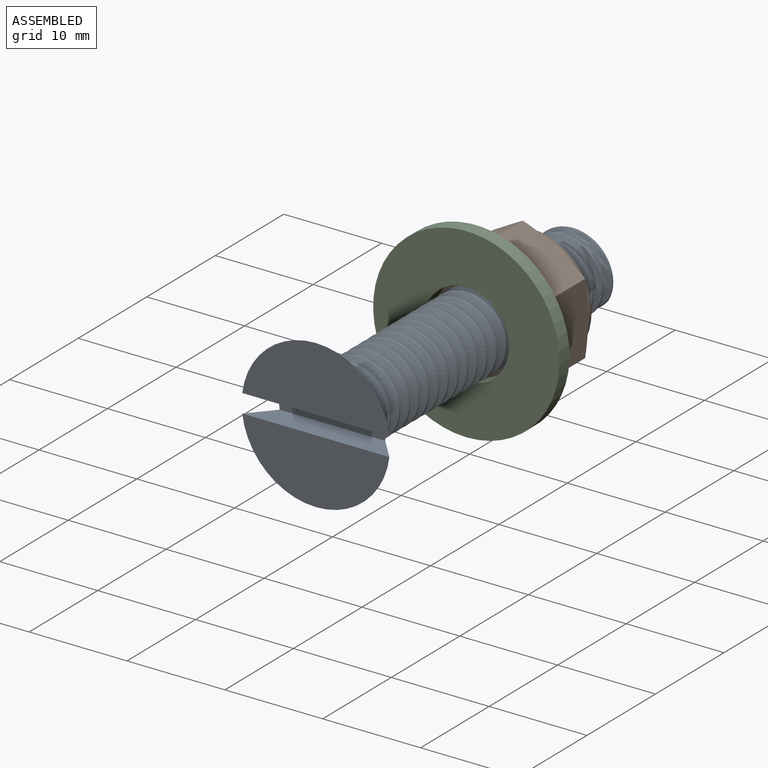
[diagram: assembled view]
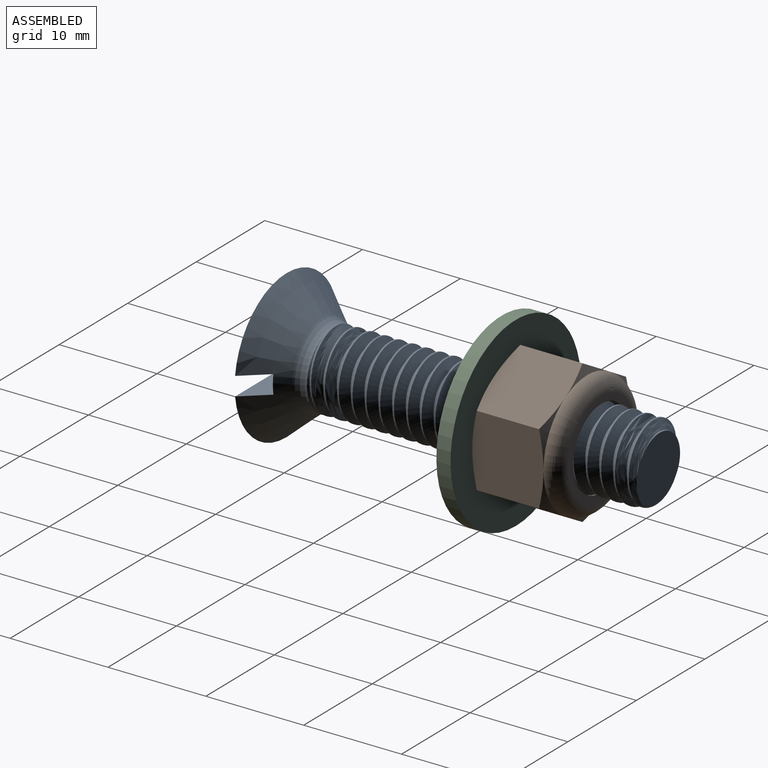
[diagram: assembled view, second angle]
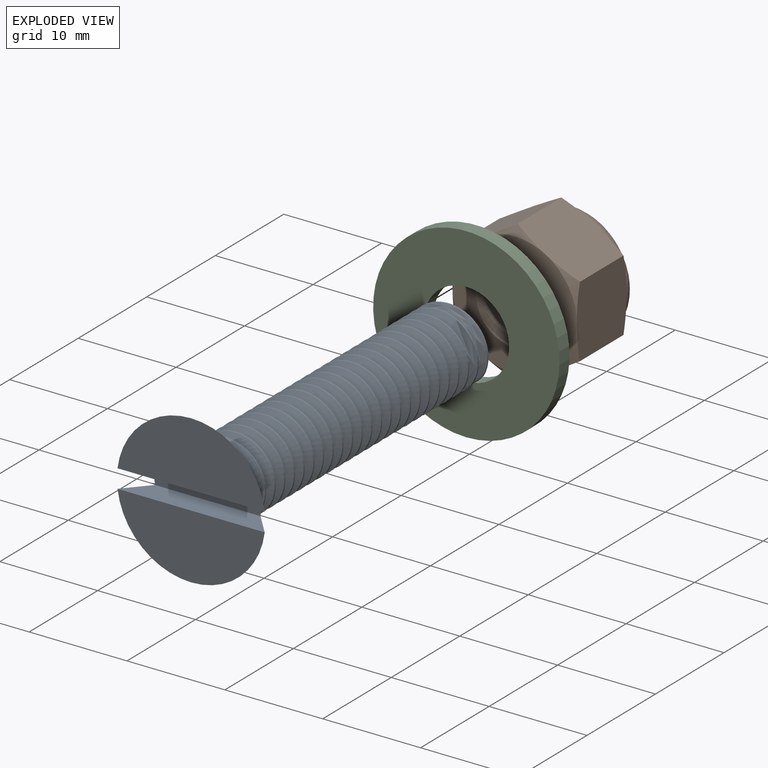
[diagram: exploded view]
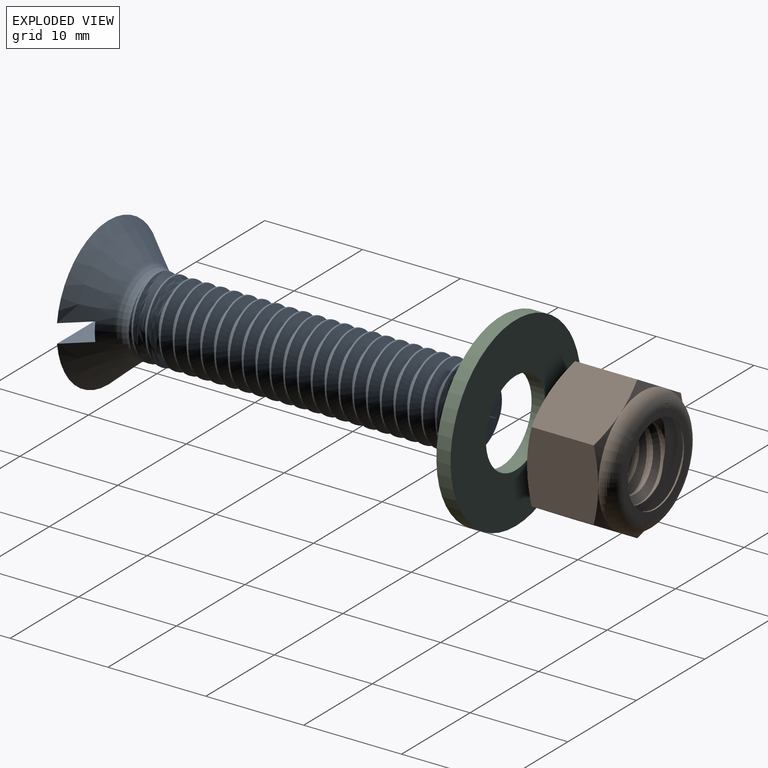
[diagram: exploded view, second angle]
ASSEMBLY  parts=3 mates=3
PART A: 14 faces, bbox 15.2x15.2x38.6 mm
  f0: plane 6.36x6.33mm, normal (0,0,-1), area 31.5mm2, adj f4,f7,f13
  f1: cone r=7.58mm half-angle=41deg, axis (0,0,1), area 169.8mm2, adj f3,f5,f9,f10,f11,f12
  f2: cone r=3.96mm half-angle=45deg, axis (0,0,1), area 15.3mm2, adj f3,f4,f7,f8
  f3: torus R=5.8mm, axis (0,0,1), area 34mm2, adj f1,f2,f6
  f4: cylinder r=3.01mm len=32.29mm, axis (0,0,1), area 77.5mm2, adj f0,f2,f7,f8,f13
  f5: plane 15.05x6.63mm, normal (0,0,1), area 76mm2, adj f1,f11
  f6: cylinder r=3.96mm len=33.02mm, axis (0,0,1), area 102.5mm2, adj f3,f7,f8,f13
  f7: bspline ~33.87x7.92mm, area 555.7mm2, adj f0,f2,f4,f6,f13
  f8: bspline ~33.83x7.92mm, area 550mm2, adj f2,f4,f6,f13
  f9: plane 15.05x6.63mm, normal (0,0,1), area 76mm2, adj f1,f12
  f10: plane 10.95x1.9mm, normal (0,0,1), area 20.6mm2, adj f1,f11,f12
  f11: plane 15.05x2.43mm, normal (0,-1,0), area 31.3mm2, adj f1,f5,f10
  f12: plane 15.05x2.43mm, normal (0,1,0), area 31.3mm2, adj f1,f9,f10
  f13: bspline ~6.9x2.92mm, area 4.9mm2, adj f0,f4,f6,f7,f8
PART B: 52 faces, bbox 15.2x9.5x15.2 mm
  f0: cylinder r=4.11mm len=8.21mm, axis (0,-1,0), area 3.9mm2, adj f26,f51
  f1: torus R=4.89mm, axis (0,-1,0), area 73.6mm2, adj f50,f51
  f2: torus R=4.89mm, axis (0,-1,0), area 83.6mm2, adj f3,f26,f39,f40,f41,f42,f43
  f3: cone r=6.35mm half-angle=65deg, axis (0,-1,0), area 3.8mm2, adj f2,f48,f49
  f4: cone r=7.33mm half-angle=65deg, axis (0,1,0), area 3.8mm2, adj f28,f45,f46
  f5: cone r=3.4mm half-angle=60deg, axis (0,-0.98,-0.18), area 17.1mm2, adj f6,f24
  f6: cylinder r=3.4mm len=6.8mm, axis (0,0.98,0.18), area 7.5mm2, adj f5,f7
  f7: cone r=4.17mm half-angle=60deg, axis (0,0.98,0.18), area 17.1mm2, adj f6,f22
  f8: cone r=3.4mm half-angle=60deg, axis (0,-0.98,-0.18), area 17.1mm2, adj f9,f22
  f9: cylinder r=3.4mm len=6.8mm, axis (0,0.98,0.18), area 7.5mm2, adj f8,f10
  f10: cone r=4.17mm half-angle=60deg, axis (0,0.98,0.18), area 17.1mm2, adj f9,f21
  f11: cone r=3.4mm half-angle=60deg, axis (0,-0.98,-0.18), area 17.1mm2, adj f12,f21
  f12: cylinder r=3.4mm len=6.8mm, axis (0,0.98,0.18), area 7.5mm2, adj f11,f13
  f13: cone r=4.17mm half-angle=60deg, axis (0,0.98,0.18), area 17.1mm2, adj f12,f20
  f14: cone r=3.4mm half-angle=60deg, axis (0,-0.98,-0.18), area 17.1mm2, adj f15,f20
  f15: cylinder r=3.4mm len=6.8mm, axis (0,0.98,0.18), area 7.5mm2, adj f14,f16
  f16: cone r=4.17mm half-angle=60deg, axis (0,0.98,0.18), area 17.1mm2, adj f15,f19
  f17: cylinder r=3.4mm len=6.8mm, axis (0,0.98,0.18), area 4mm2, adj f18,f33,f50
  f18: cone r=4.17mm half-angle=60deg, axis (0,0.98,0.18), area 5.1mm2, adj f17,f32,f50
  f19: cylinder r=3.96mm len=7.92mm, axis (0,-1,0), area 8.2mm2, adj f16,f33,f50
  f20: cylinder r=3.96mm len=7.92mm, axis (0,-1,0), area 8.8mm2, adj f13,f14
  f21: cylinder r=3.96mm len=7.92mm, axis (0,-1,0), area 8.8mm2, adj f10,f11
  f22: cylinder r=3.96mm len=7.92mm, axis (0,-1,0), area 8.8mm2, adj f7,f8
  f23: cylinder r=3.96mm len=7.01mm, axis (0,-1,0), area 1.6mm2, adj f25,f28
  f24: cylinder r=3.96mm len=7.92mm, axis (0,-1,0), area 8.7mm2, adj f5,f28,f30
  f25: cone r=3.4mm half-angle=60deg, axis (0,-0.98,-0.18), area 5mm2, adj f23,f27,f29,f31
  f26: plane 9.79x9.79mm, normal (0,1,0), area 22.3mm2, adj f0,f2
  f27: cone r=3.96mm half-angle=65deg, axis (0,-1,0), area 2.6mm2, adj f25,f28,f30,f31
  f28: plane 12.7x12.7mm, normal (0,-1,0), area 77.4mm2, adj f4,f23,f24,f27,f29,f34,f35,f36
  f29: cone r=3.96mm half-angle=65deg, axis (0,-1,0), area 2.6mm2, adj f25,f28,f30,f31
  f30: cone r=4.17mm half-angle=60deg, axis (0,0.98,0.18), area 12.6mm2, adj f24,f27,f29,f31
  f31: cylinder r=3.4mm len=6.8mm, axis (0,0.98,0.18), area 3.4mm2, adj f25,f27,f29,f30
  f32: cylinder r=3.96mm len=6.25mm, axis (0,-1,0), area 1mm2, adj f18,f50
  f33: cone r=3.4mm half-angle=60deg, axis (0,-0.98,-0.18), area 12.2mm2, adj f17,f19,f50
  f34: cone r=7.33mm half-angle=65deg, axis (0,1,0), area 3.8mm2, adj f28,f44,f45
  f35: cone r=7.33mm half-angle=65deg, axis (0,1,0), area 3.8mm2, adj f28,f44,f49
  f36: cone r=7.33mm half-angle=65deg, axis (0,1,0), area 3.8mm2, adj f28,f48,f49
  f37: cone r=7.33mm half-angle=65deg, axis (0,1,0), area 3.8mm2, adj f28,f47,f48
  f38: cone r=7.33mm half-angle=65deg, axis (0,1,0), area 3.8mm2, adj f28,f46,f47
  f39: cone r=6.35mm half-angle=65deg, axis (0,-1,0), area 3.8mm2, adj f2,f46,f47
  f40: cone r=6.35mm half-angle=65deg, axis (0,-1,0), area 3.8mm2, adj f2,f47,f48
  f41: cone r=6.35mm half-angle=65deg, axis (0,-1,0), area 3.8mm2, adj f2,f45,f46
  f42: cone r=6.35mm half-angle=65deg, axis (0,-1,0), area 3.8mm2, adj f2,f44,f49
  f43: cone r=6.35mm half-angle=65deg, axis (0,-1,0), area 3.8mm2, adj f2,f44,f45
  f44: plane 7.91x7.85mm, normal (1,0,0), area 51.1mm2, adj f34,f35,f42,f43,f45,f49
  f45: plane 7.85x6.93mm, normal (0.5,0,0.87), area 51mm2, adj f4,f34,f41,f43,f44,f46
  f46: plane 7.85x6.93mm, normal (-0.5,0,0.87), area 51.1mm2, adj f4,f38,f39,f41,f45,f47
  f47: plane 7.91x7.85mm, normal (-1,0,0), area 51.1mm2, adj f37,f38,f39,f40,f46,f48
  f48: plane 7.85x6.93mm, normal (-0.5,0,-0.87), area 51.1mm2, adj f3,f36,f37,f40,f47,f49
  f49: plane 7.85x6.93mm, normal (0.5,0,-0.87), area 51.1mm2, adj f3,f35,f36,f42,f44,f48
  f50: plane 12.47x12.47mm, normal (0,1,0), area 75.8mm2, adj f1,f17,f18,f19,f32,f33
  f51: plane 9.79x9.79mm, normal (0,-1,0), area 22.3mm2, adj f0,f1
PART C: 4 faces, bbox 19.1x1.4x19.1 mm
  f0: cylinder r=4.37mm len=8.74mm, axis (0,1,0), area 39.7mm2, adj f2,f3
  f1: cylinder r=9.53mm len=19.05mm, axis (0,-1,0), area 86.6mm2, adj f2,f3
  f2: plane 19.05x19.05mm, normal (0,1,0), area 225.1mm2, adj f0,f1
  f3: plane 19.05x19.05mm, normal (0,-1,0), area 225.1mm2, adj f0,f1
PLACE A rot(axis=(1,0,0),90deg) t=(-11.27,-15.78,-25.82)mm fixed
PLACE B t=(-11.27,2.79,-25.82)mm
PLACE C rot(axis=(1,0,0),180deg) t=(-11.27,2.79,-25.82)mm
MATE planar C.f0 <-> B.f2  axis (0,1,0) through (-11.27,2.79,-25.82)mm
MATE cylindrical C.f0 <-> B.f2  axis (0,1,0) through (-11.27,2.79,-25.82)mm
MATE fastened A.f1 <-> C.f0  axis (0,-1,0) through (-11.27,-20.63,-25.82)mm
